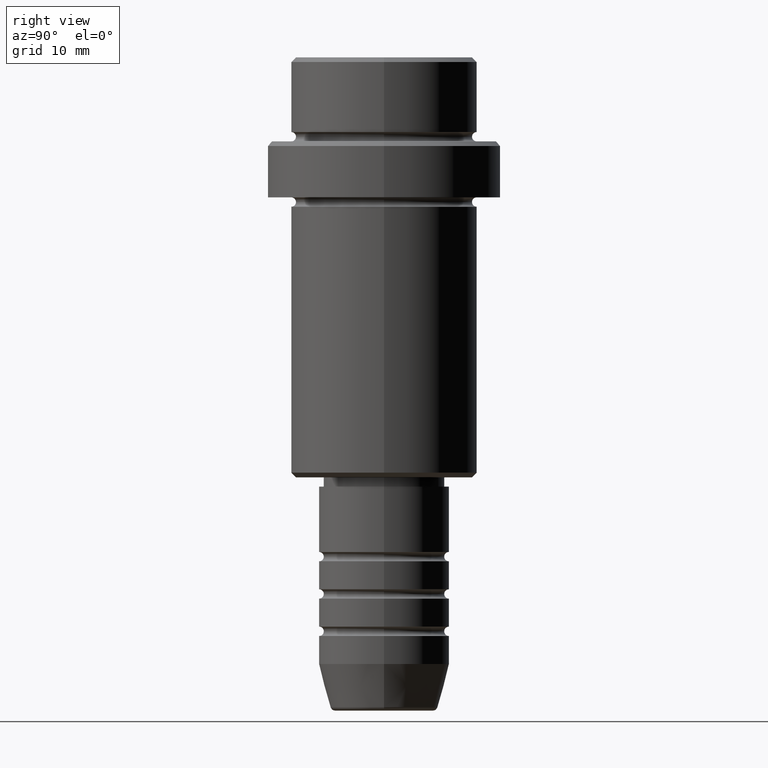
[diagram: clean part render]
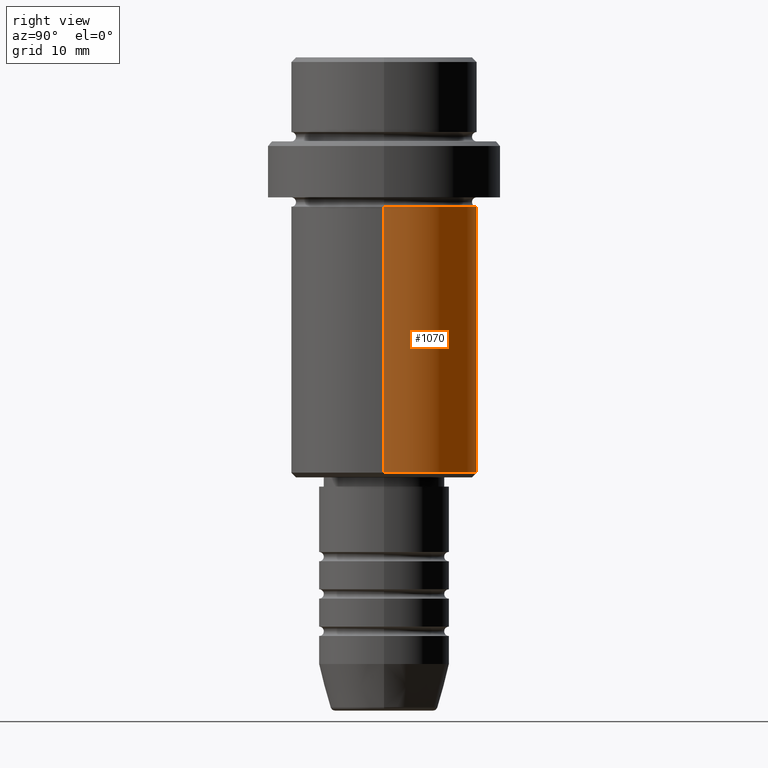
[diagram: same view with one face highlighted and labeled with its STEP entity id]
A machine part, right view. The second image highlights one B-rep face of the part: STEP entity #1070.
In plain terms, the highlighted cylindrical surface (partial cylindrical patch) has radius 10 mm, axis along (-0, -0, 1).
Its self-contained STEP definition (entity closure, byte-faithful):
#10 = VERTEX_POINT ( 'NONE', #528 ) ;
#18 = DIRECTION ( 'NONE',  ( -1.000000000000000000, 0.000000000000000000, 0.000000000000000000 ) ) ;
#37 = EDGE_CURVE ( 'NONE', #1396, #10, #229, .T. ) ;
#104 = EDGE_CURVE ( 'NONE', #1396, #1337, #271, .T. ) ;
#106 = DIRECTION ( 'NONE',  ( -0.000000000000000000, -0.000000000000000000, 1.000000000000000000 ) ) ;
#152 = CARTESIAN_POINT ( 'NONE',  ( -10.00000000000000000, 1.224646799147353256E-15, -16.00000000000000000 ) ) ;
#167 = EDGE_LOOP ( 'NONE', ( #217, #990, #1242, #302 ) ) ;
#180 = VERTEX_POINT ( 'NONE', #152 ) ;
#217 = ORIENTED_EDGE ( 'NONE', *, *, #104, .T. ) ;
#229 = LINE ( 'NONE', #438, #1095 ) ;
#271 = CIRCLE ( 'NONE', #1075, 10.00000000000000000 ) ;
#302 = ORIENTED_EDGE ( 'NONE', *, *, #37, .F. ) ;
#329 = DIRECTION ( 'NONE',  ( -0.000000000000000000, -0.000000000000000000, 1.000000000000000000 ) ) ;
#364 = EDGE_CURVE ( 'NONE', #10, #180, #1169, .T. ) ;
#438 = CARTESIAN_POINT ( 'NONE',  ( 10.00000000000000000, 0.000000000000000000, 0.000000000000000000 ) ) ;
#439 = CARTESIAN_POINT ( 'NONE',  ( -10.00000000000000000, 1.224646799147353256E-15, -44.50000000000000000 ) ) ;
#478 = DIRECTION ( 'NONE',  ( 1.000000000000000000, 0.000000000000000000, 0.000000000000000000 ) ) ;
#486 = FACE_OUTER_BOUND ( 'NONE', #167, .T. ) ;
#528 = CARTESIAN_POINT ( 'NONE',  ( 10.00000000000000000, 0.000000000000000000, -16.00000000000000000 ) ) ;
#542 = EDGE_CURVE ( 'NONE', #1337, #180, #1322, .T. ) ;
#557 = CARTESIAN_POINT ( 'NONE',  ( 0.000000000000000000, 0.000000000000000000, -44.50000000000000000 ) ) ;
#686 = CARTESIAN_POINT ( 'NONE',  ( -10.00000000000000000, 1.224646799147353256E-15, 0.000000000000000000 ) ) ;
#698 = DIRECTION ( 'NONE',  ( -0.000000000000000000, -0.000000000000000000, 1.000000000000000000 ) ) ;
#716 = DIRECTION ( 'NONE',  ( 1.000000000000000000, 0.000000000000000000, 0.000000000000000000 ) ) ;
#729 = CARTESIAN_POINT ( 'NONE',  ( 0.000000000000000000, 0.000000000000000000, -16.00000000000000000 ) ) ;
#814 = CARTESIAN_POINT ( 'NONE',  ( 0.000000000000000000, 0.000000000000000000, 0.000000000000000000 ) ) ;
#832 = CYLINDRICAL_SURFACE ( 'NONE', #986, 10.00000000000000000 ) ;
#946 = DIRECTION ( 'NONE',  ( -0.000000000000000000, -0.000000000000000000, 1.000000000000000000 ) ) ;
#986 = AXIS2_PLACEMENT_3D ( 'NONE', #814, #698, #478 ) ;
#990 = ORIENTED_EDGE ( 'NONE', *, *, #542, .T. ) ;
#1004 = CARTESIAN_POINT ( 'NONE',  ( 10.00000000000000000, 0.000000000000000000, -44.50000000000000000 ) ) ;
#1013 = DIRECTION ( 'NONE',  ( -0.000000000000000000, -0.000000000000000000, 1.000000000000000000 ) ) ;
#1070 = ADVANCED_FACE ( 'NONE', ( #486 ), #832, .T. ) ;
#1075 = AXIS2_PLACEMENT_3D ( 'NONE', #557, #1013, #18 ) ;
#1095 = VECTOR ( 'NONE', #106, 1000.000000000000000 ) ;
#1169 = CIRCLE ( 'NONE', #1212, 10.00000000000000000 ) ;
#1206 = VECTOR ( 'NONE', #329, 1000.000000000000000 ) ;
#1212 = AXIS2_PLACEMENT_3D ( 'NONE', #729, #946, #716 ) ;
#1242 = ORIENTED_EDGE ( 'NONE', *, *, #364, .F. ) ;
#1322 = LINE ( 'NONE', #686, #1206 ) ;
#1337 = VERTEX_POINT ( 'NONE', #439 ) ;
#1396 = VERTEX_POINT ( 'NONE', #1004 ) ;